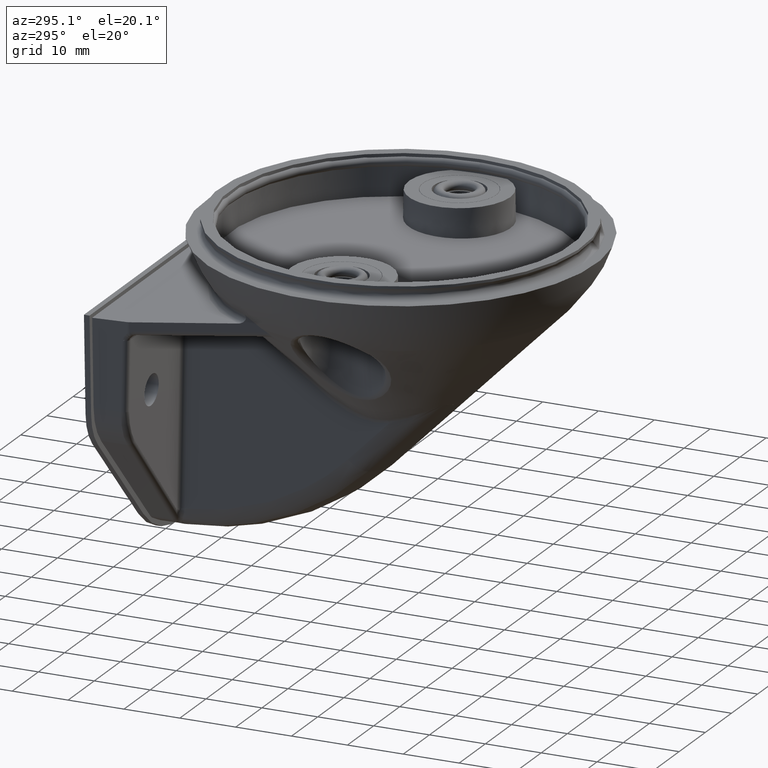
[diagram: clean part render]
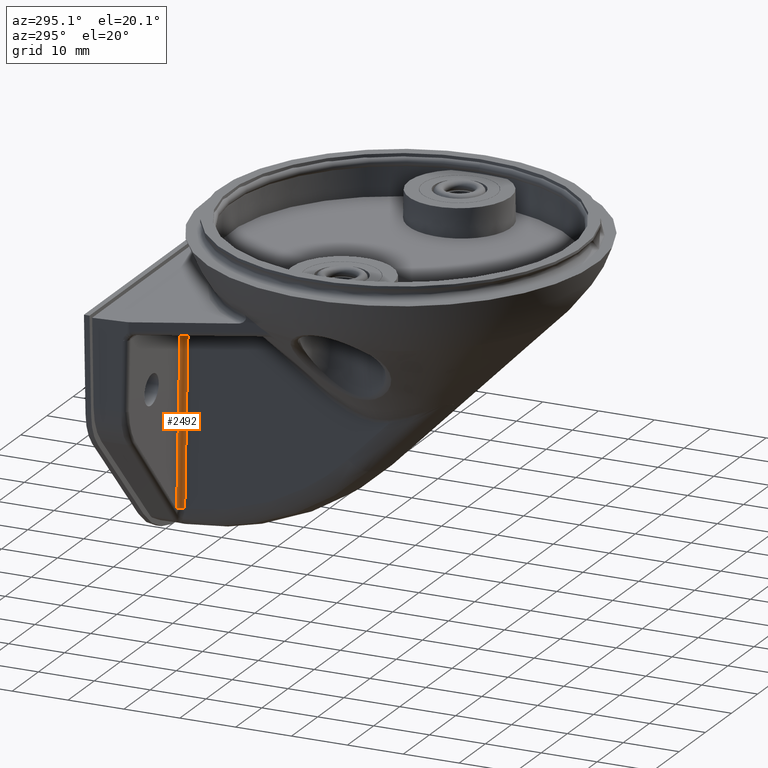
[diagram: same view with one face highlighted and labeled with its STEP entity id]
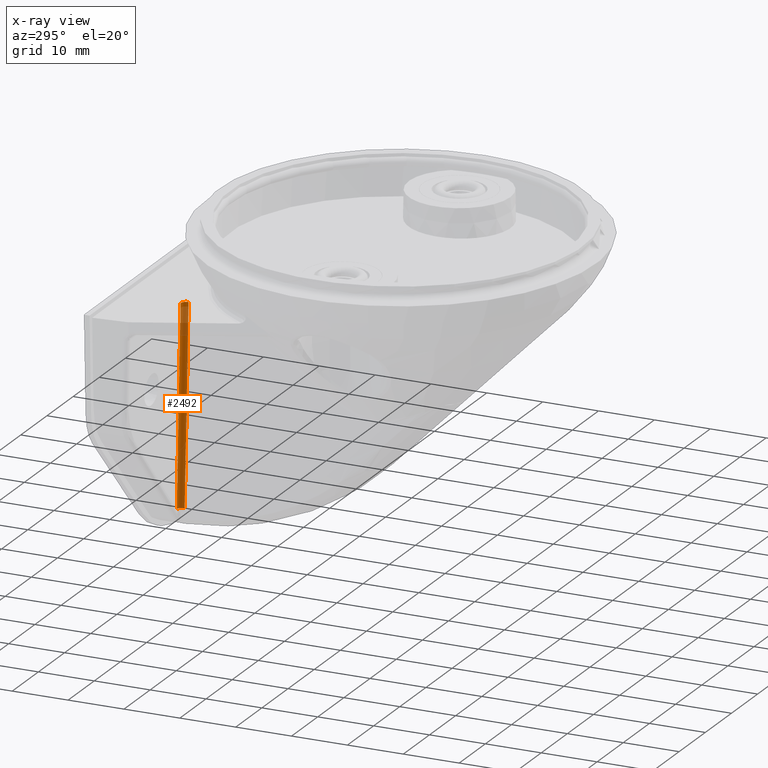
[diagram: x-ray of the same camera — body ghosted, the highlighted face saturated]
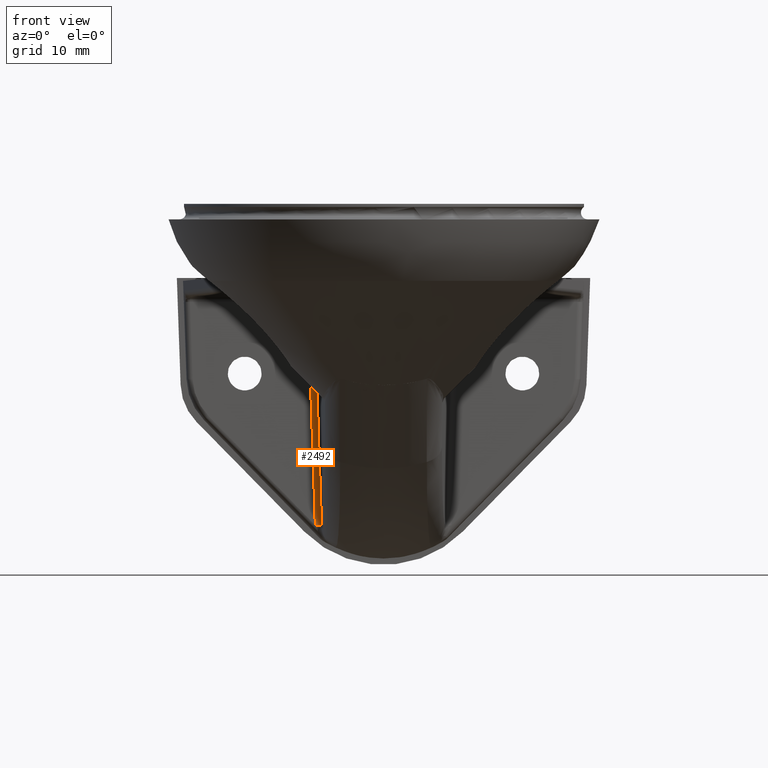
[diagram: same view with one face highlighted and labeled with its STEP entity id]
A machine part, auxiliary view. The second image highlights one B-rep face of the part: STEP entity #2492.
The next image is the same camera in x-ray: the body ghosted, the highlighted face saturated — about 14% of this face is hidden behind the body in this view.
A second angle (front view) of the same face is appended — the face is thin or edge-on in the first view.
In plain terms, the highlighted cylindrical surface (edge-blend (fillet) strip) has radius 1 mm, axis along (-0.0337, -0.0349, 0.9988).
Its self-contained STEP definition (entity closure, byte-faithful):
#304=CYLINDRICAL_SURFACE('',#3138,1.);
#410=CIRCLE('',#3135,1.);
#412=CIRCLE('',#3137,1.);
#586=FACE_OUTER_BOUND('',#802,.T.);
#802=EDGE_LOOP('',(#1469,#1470,#1471,#1472));
#1469=ORIENTED_EDGE('',*,*,#2024,.T.);
#1470=ORIENTED_EDGE('',*,*,#1858,.F.);
#1471=ORIENTED_EDGE('',*,*,#2028,.F.);
#1472=ORIENTED_EDGE('',*,*,#1788,.F.);
#1788=EDGE_CURVE('',#2755,#2756,#2134,.T.);
#1858=EDGE_CURVE('',#2813,#2814,#2150,.T.);
#2024=EDGE_CURVE('',#2755,#2814,#410,.T.);
#2028=EDGE_CURVE('',#2756,#2813,#412,.T.);
#2134=LINE('',#4198,#2253);
#2150=LINE('',#5066,#2270);
#2253=VECTOR('',#3408,1.);
#2270=VECTOR('',#3479,1.);
#2492=ADVANCED_FACE('',(#586),#304,.F.);
#2755=VERTEX_POINT('',#4197);
#2756=VERTEX_POINT('',#4199);
#2813=VERTEX_POINT('',#5067);
#2814=VERTEX_POINT('',#5068);
#3135=AXIS2_PLACEMENT_3D('',#7789,#3759,#3760);
#3137=AXIS2_PLACEMENT_3D('',#7853,#3763,#3764);
#3138=AXIS2_PLACEMENT_3D('',#7854,#3765,#3766);
#3408=DIRECTION('',(-0.0336609504085699,-0.0348797194941522,0.998824481871365));
#3479=DIRECTION('',(0.0336609504085699,0.0348797194941522,-0.998824481871365));
#3759=DIRECTION('',(0.0336609504085687,0.0348797194941513,-0.998824481871365));
#3760=DIRECTION('',(0.,0.999390827019095,0.0348994967025069));
#3763=DIRECTION('',(0.0336609504085689,0.0348797194941513,-0.998824481871365));
#3764=DIRECTION('',(0.,0.999390827019098,0.0348994967025087));
#3765=DIRECTION('',(-0.0336609504085699,-0.0348797194941522,0.998824481871365));
#3766=DIRECTION('',(0.,-0.999390827019095,-0.0348994967025104));
#4197=CARTESIAN_POINT('',(-11.0481006750745,32.8611804896499,-22.9830195448758));
#4198=CARTESIAN_POINT('',(-12.2644036616016,31.6008385659957,13.108451003955));
#4199=CARTESIAN_POINT('',(-12.2666343192394,31.5985271424694,13.1746415134998));
#5066=CARTESIAN_POINT('',(-10.0434259682517,31.9027951985869,-23.1578948913265));
#5067=CARTESIAN_POINT('',(-11.2678522941092,30.6340358121528,13.1746202536694));
#5068=CARTESIAN_POINT('',(-10.0493186499443,31.8966891593333,-22.9830408047062));
#7789=CARTESIAN_POINT('',(-11.0481006750742,31.8617896626308,-23.0179190415783));
#7853=CARTESIAN_POINT('',(-12.2666343192391,30.5991363154503,13.1397420167973));
#7854=CARTESIAN_POINT('',(-10.8736662656401,32.0425398552825,-28.1939273392875));